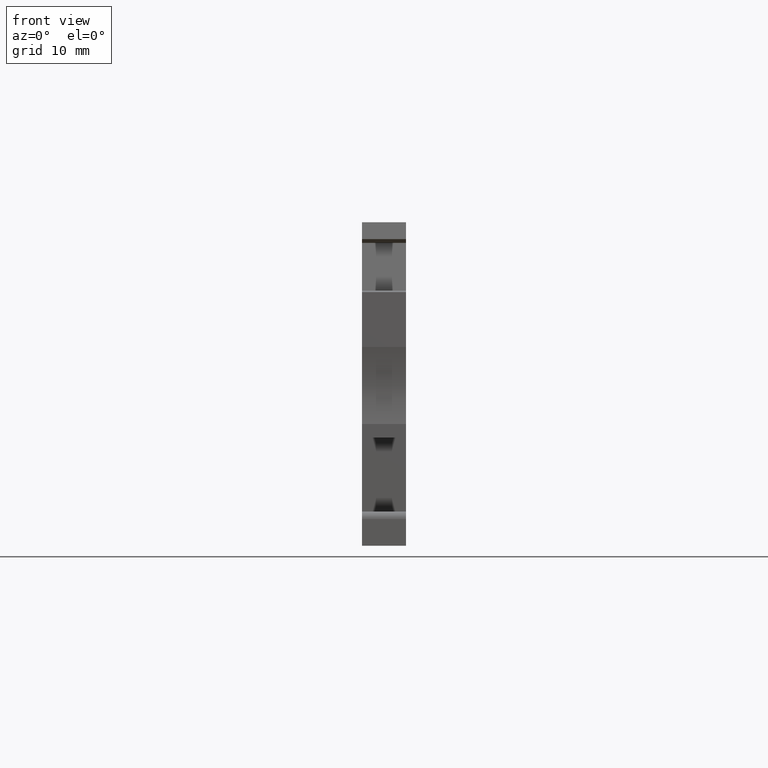
[diagram: clean part render]
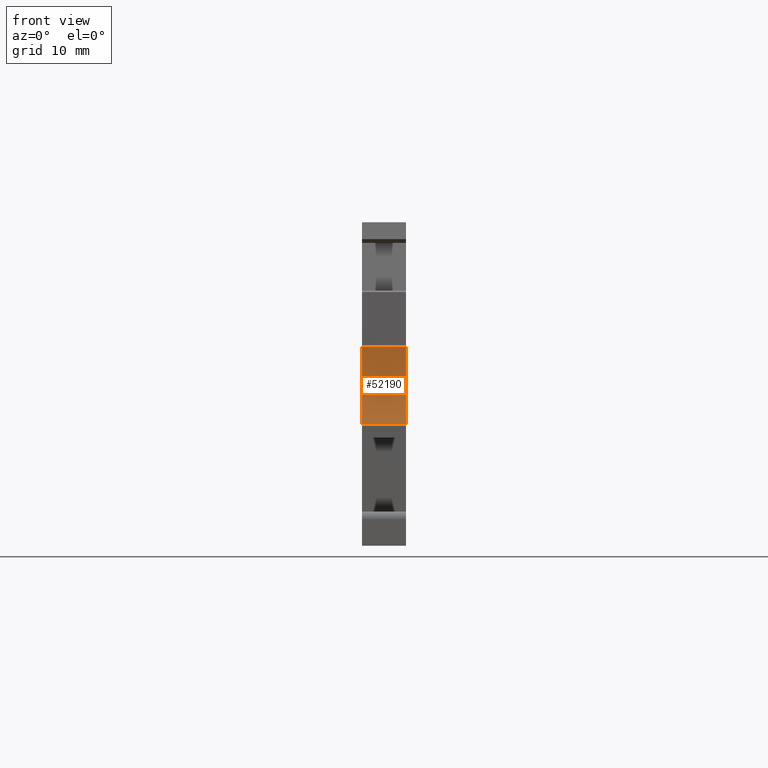
[diagram: same view with one face highlighted and labeled with its STEP entity id]
A machine part, front view. The second image highlights one B-rep face of the part: STEP entity #52190.
In plain terms, the highlighted cylindrical surface (partial cylindrical patch) has radius 15 mm, axis along (1, -0, -0).
Its self-contained STEP definition (entity closure, byte-faithful):
#2160=CARTESIAN_POINT('',(6.01744820486748,8.83133009276248,
9.60725899343946E-11));
#2170=VERTEX_POINT('',#2160);
#2200=CARTESIAN_POINT('',(-8.73339408944809,11.5539486132764,
-7.10018948638619E-11));
#2210=DIRECTION('',(-1.12577348889874E-16,8.16781307540979E-17,1.));
#2220=DIRECTION('',(0.992546151641322,0.121869343405148,
9.82259016566094E-17));
#2230=AXIS2_PLACEMENT_3D('',#2200,#2210,#2220);
#2240=CIRCLE('',#2230,15.);
#2250=CARTESIAN_POINT('',(4.92062411421921,17.764245457541,
9.60717368330171E-11));
#2260=VERTEX_POINT('',#2250);
#2270=EDGE_CURVE('',#2170,#2260,#2240,.T.);
#9460=CARTESIAN_POINT('',(4.92062411422074,17.7642454575376,
-5.15000000007102));
#9470=VERTEX_POINT('',#9460);
#9500=CARTESIAN_POINT('',(-8.73339408944809,11.5539486132764,
-5.150000000071));
#9510=DIRECTION('',(-1.12577348889874E-16,8.16781307540979E-17,1.));
#9520=DIRECTION('',(0.992546151641322,0.121869343405148,
9.82259016566094E-17));
#9530=AXIS2_PLACEMENT_3D('',#9500,#9510,#9520);
#9540=CIRCLE('',#9530,15.);
#9550=CARTESIAN_POINT('',(6.01744820486748,8.83133009276248,
-5.15000000007102));
#9560=VERTEX_POINT('',#9550);
#9570=EDGE_CURVE('',#9560,#9470,#9540,.T.);
#46880=CARTESIAN_POINT('',(6.01744820486748,8.83133009276247,
-5.150000000071));
#46890=DIRECTION('',(-1.12577348889874E-16,8.16781307540979E-17,1.));
#46900=VECTOR('',#46890,1.);
#46910=LINE('',#46880,#46900);
#46920=EDGE_CURVE('',#9560,#2170,#46910,.T.);
#52030=CARTESIAN_POINT('',(-8.73339408944819,11.5539486132734,
-5.150000000071));
#52040=DIRECTION('',(-1.12577348889874E-16,8.16781307540979E-17,1.));
#52050=DIRECTION('',(-0.992546151641318,-0.121869343405181,
-9.82259016567104E-17));
#52060=AXIS2_PLACEMENT_3D('',#52030,#52040,#52050);
#52070=CYLINDRICAL_SURFACE('',#52060,15.);
#52080=ORIENTED_EDGE('',*,*,#46920,.T.);
#52090=ORIENTED_EDGE('',*,*,#9570,.F.);
#52100=CARTESIAN_POINT('',(4.92062411422022,17.7642454575419,
-5.150000000071));
#52110=DIRECTION('',(-1.12577348889874E-16,8.16781307540979E-17,1.));
#52120=VECTOR('',#52110,1.);
#52130=LINE('',#52100,#52120);
#52140=EDGE_CURVE('',#9470,#2260,#52130,.T.);
#52150=ORIENTED_EDGE('',*,*,#52140,.F.);
#52160=ORIENTED_EDGE('',*,*,#2270,.T.);
#52170=EDGE_LOOP('',(#52160,#52150,#52090,#52080));
#52180=FACE_OUTER_BOUND('',#52170,.T.);
#52190=ADVANCED_FACE('',(#52180),#52070,.F.);